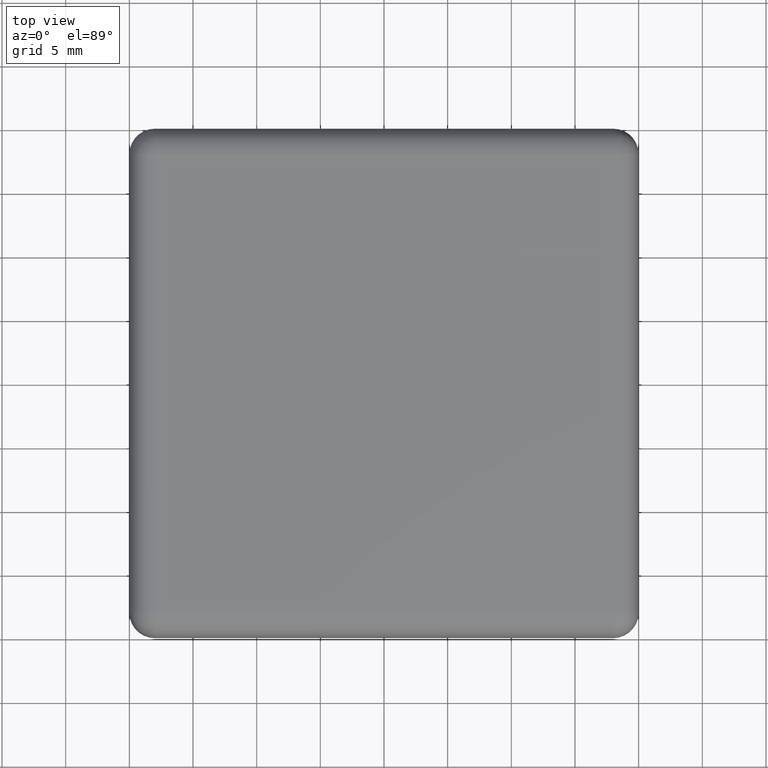
[diagram: clean part render]
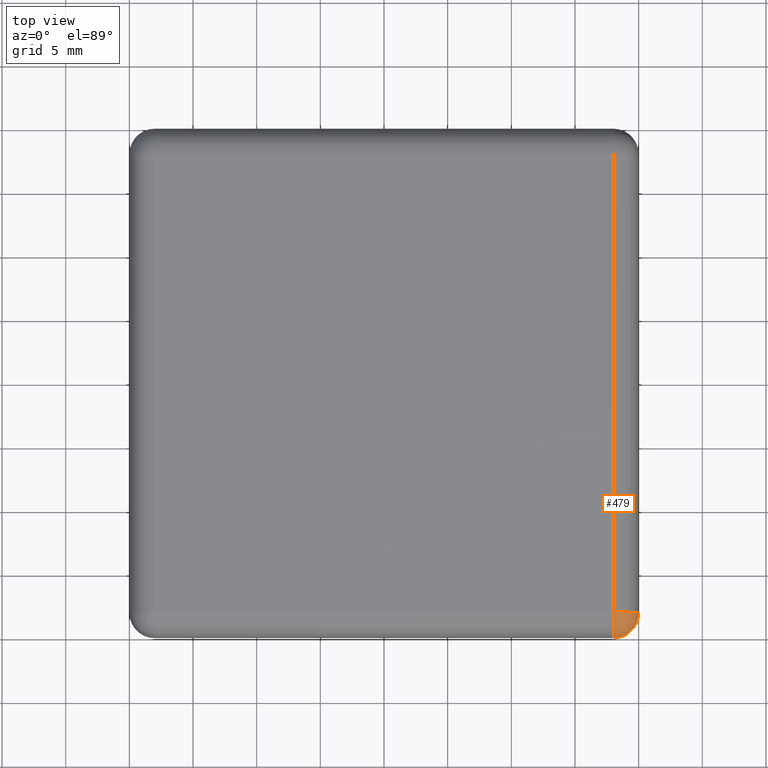
[diagram: same view with one face highlighted and labeled with its STEP entity id]
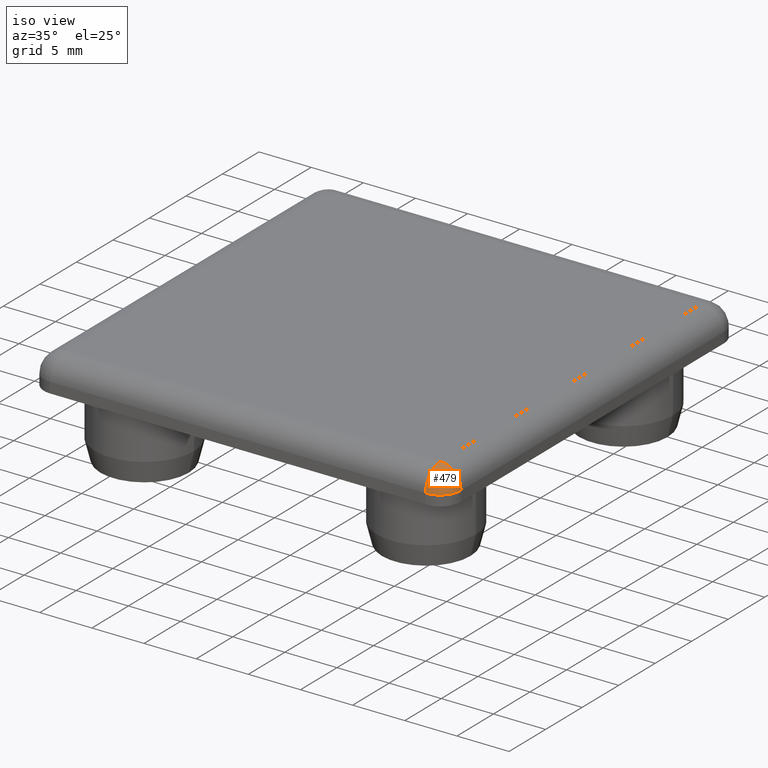
[diagram: same view with one face highlighted and labeled with its STEP entity id]
A machine part, top view. The second image highlights one B-rep face of the part: STEP entity #479.
A second angle (iso view) of the same face is appended — the face is thin or edge-on in the first view.
In plain terms, the highlighted spherical surface has radius 2 mm.
Its self-contained STEP definition (entity closure, byte-faithful):
#17=SPHERICAL_SURFACE('',#549,2.);
#135=FACE_OUTER_BOUND('',#193,.T.);
#193=EDGE_LOOP('',(#406,#407,#408));
#235=CIRCLE('',#550,2.);
#236=CIRCLE('',#551,2.);
#237=CIRCLE('',#552,2.);
#266=VERTEX_POINT('',#809);
#277=VERTEX_POINT('',#844);
#278=VERTEX_POINT('',#846);
#324=EDGE_CURVE('',#277,#266,#235,.F.);
#325=EDGE_CURVE('',#278,#277,#236,.F.);
#326=EDGE_CURVE('',#266,#278,#237,.F.);
#406=ORIENTED_EDGE('',*,*,#324,.F.);
#407=ORIENTED_EDGE('',*,*,#325,.F.);
#408=ORIENTED_EDGE('',*,*,#326,.F.);
#479=ADVANCED_FACE('',(#135),#17,.T.);
#549=AXIS2_PLACEMENT_3D('',#843,#694,#695);
#550=AXIS2_PLACEMENT_3D('',#845,#696,#697);
#551=AXIS2_PLACEMENT_3D('',#847,#698,#699);
#552=AXIS2_PLACEMENT_3D('',#848,#700,#701);
#694=DIRECTION('center_axis',(0.408248290463863,-0.408248290463863,-0.816496580927726));
#695=DIRECTION('ref_axis',(0.577350269189627,-0.577350269189625,0.577350269189626));
#696=DIRECTION('center_axis',(1.,0.,0.));
#697=DIRECTION('ref_axis',(0.,-1.,0.));
#698=DIRECTION('center_axis',(0.,0.,1.));
#699=DIRECTION('ref_axis',(1.,0.,0.));
#700=DIRECTION('center_axis',(-2.22044604925031E-15,-1.,0.));
#701=DIRECTION('ref_axis',(0.,0.,1.));
#809=CARTESIAN_POINT('',(18.,-18.,3.));
#843=CARTESIAN_POINT('Origin',(18.,-18.,1.));
#844=CARTESIAN_POINT('',(18.,-20.,1.));
#845=CARTESIAN_POINT('Origin',(18.,-18.,1.));
#846=CARTESIAN_POINT('',(20.,-18.,1.));
#847=CARTESIAN_POINT('Origin',(18.,-18.,1.));
#848=CARTESIAN_POINT('Origin',(18.,-18.,1.));